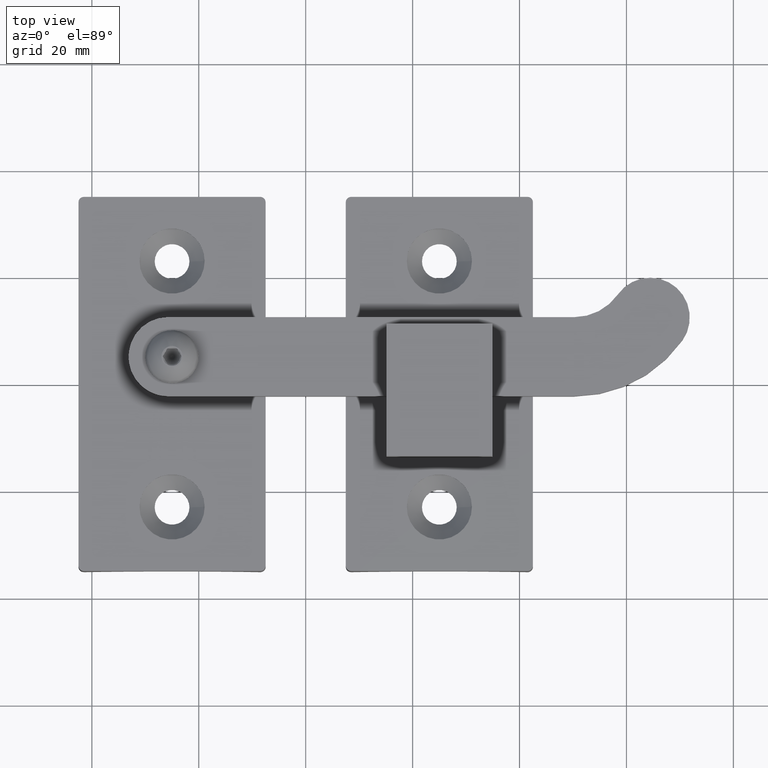
[diagram: clean part render]
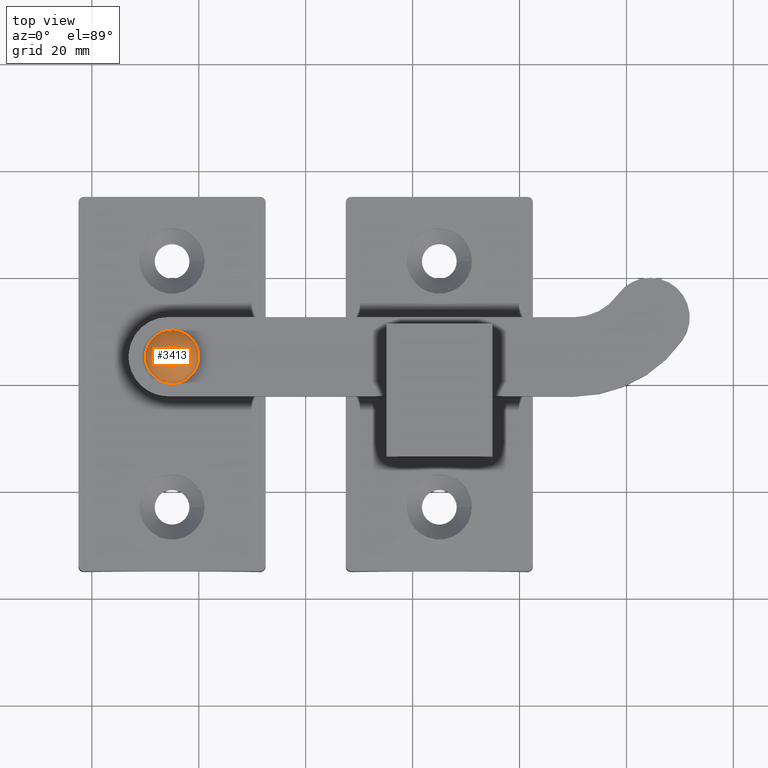
[diagram: same view with one face highlighted and labeled with its STEP entity id]
A machine part, top view. The second image highlights one B-rep face of the part: STEP entity #3413.
In plain terms, the highlighted spherical surface has radius 5.7585 mm.
Its self-contained STEP definition (entity closure, byte-faithful):
#625 = EDGE_LOOP ( 'NONE', ( #6928 ) ) ;
#1128 = CARTESIAN_POINT ( 'NONE',  ( 0.000000000000000000, -8.673617379884035472E-16, -1.982050807568876305 ) ) ;
#1375 = EDGE_CURVE ( 'NONE', #3568, #3568, #14673, .T. ) ;
#1828 = DIRECTION ( 'NONE',  ( -0.000000000000000000, -1.000000000000000000, -0.000000000000000000 ) ) ;
#1974 = EDGE_LOOP ( 'NONE', ( #3713 ) ) ;
#2948 = DIRECTION ( 'NONE',  ( 0.000000000000000000, 0.000000000000000000, -1.000000000000000000 ) ) ;
#3413 = ADVANCED_FACE ( 'NONE', ( #13716, #18497 ), #16232, .T. ) ;
#3568 = VERTEX_POINT ( 'NONE', #1128 ) ;
#3713 = ORIENTED_EDGE ( 'NONE', *, *, #8216, .T. ) ;
#5819 = CIRCLE ( 'NONE', #8342, 4.999999999999999112 ) ;
#6928 = ORIENTED_EDGE ( 'NONE', *, *, #1375, .F. ) ;
#6943 = VERTEX_POINT ( 'NONE', #12841 ) ;
#7772 = CARTESIAN_POINT ( 'NONE',  ( 0.000000000000000000, 2.550000000000000266, 0.000000000000000000 ) ) ;
#8216 = EDGE_CURVE ( 'NONE', #6943, #6943, #5819, .T. ) ;
#8342 = AXIS2_PLACEMENT_3D ( 'NONE', #7772, #1828, #18072 ) ;
#8883 = DIRECTION ( 'NONE',  ( -0.000000000000000000, -1.000000000000000000, -0.000000000000000000 ) ) ;
#10284 = CARTESIAN_POINT ( 'NONE',  ( 0.000000000000000000, -8.673617379884035472E-16, 0.000000000000000000 ) ) ;
#10921 = DIRECTION ( 'NONE',  ( 0.000000000000000000, 0.000000000000000000, 1.000000000000000000 ) ) ;
#12841 = CARTESIAN_POINT ( 'NONE',  ( 0.000000000000000000, 2.550000000000000266, -4.999999999999999112 ) ) ;
#13716 = FACE_OUTER_BOUND ( 'NONE', #1974, .T. ) ;
#13845 = DIRECTION ( 'NONE',  ( 1.000000000000000000, 0.000000000000000000, 0.000000000000000000 ) ) ;
#14673 = CIRCLE ( 'NONE', #16097, 1.982050807568876305 ) ;
#15015 = AXIS2_PLACEMENT_3D ( 'NONE', #16985, #10921, #13845 ) ;
#16097 = AXIS2_PLACEMENT_3D ( 'NONE', #10284, #8883, #2948 ) ;
#16232 = SPHERICAL_SURFACE ( 'NONE', #15015, 5.758516821681530118 ) ;
#16985 = CARTESIAN_POINT ( 'NONE',  ( 0.000000000000000000, 5.406661685532460737, 0.000000000000000000 ) ) ;
#18072 = DIRECTION ( 'NONE',  ( 0.000000000000000000, 0.000000000000000000, -1.000000000000000000 ) ) ;
#18497 = FACE_OUTER_BOUND ( 'NONE', #625, .T. ) ;